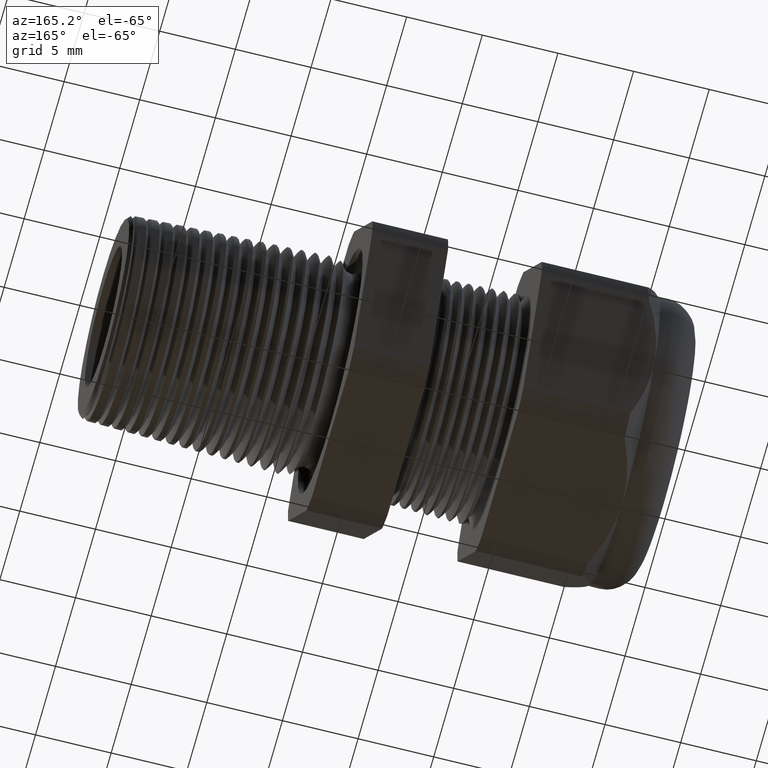
[diagram: clean part render]
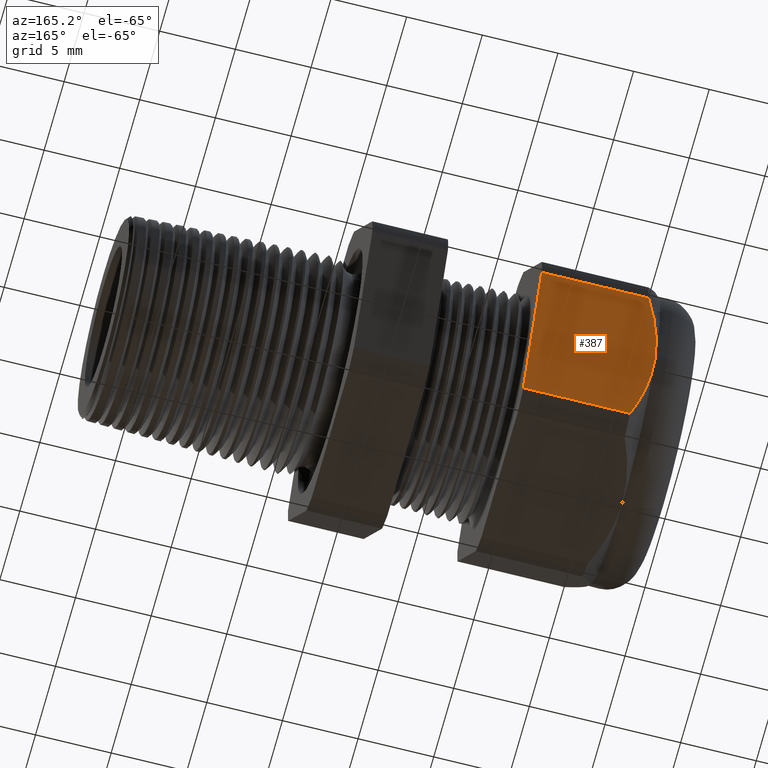
[diagram: same view with one face highlighted and labeled with its STEP entity id]
A machine part, auxiliary view. The second image highlights one B-rep face of the part: STEP entity #387.
In plain terms, the highlighted planar face has unit normal (0, 0.866, -0.5).
Its self-contained STEP definition (entity closure, byte-faithful):
#317 = VERTEX_POINT ( 'NONE', #2302 ) ;
#318 = ORIENTED_EDGE ( 'NONE', *, *, #371, .F. ) ;
#371 = EDGE_CURVE ( 'NONE', #372, #317, #2436, .T. ) ;
#372 = VERTEX_POINT ( 'NONE', #2432 ) ;
#373 = ORIENTED_EDGE ( 'NONE', *, *, #374, .F. ) ;
#374 = EDGE_CURVE ( 'NONE', #391, #372, #2430, .T. ) ;
#387 = ADVANCED_FACE ( 'NONE', ( #2467 ), #2466, .T. ) ;
#388 = EDGE_LOOP ( 'NONE', ( #389, #393, #395, #318, #373 ) ) ;
#389 = ORIENTED_EDGE ( 'NONE', *, *, #390, .T. ) ;
#390 = EDGE_CURVE ( 'NONE', #391, #392, #2461, .T. ) ;
#391 = VERTEX_POINT ( 'NONE', #2457 ) ;
#392 = VERTEX_POINT ( 'NONE', #2456 ) ;
#393 = ORIENTED_EDGE ( 'NONE', *, *, #394, .T. ) ;
#394 = EDGE_CURVE ( 'NONE', #392, #5353, #2516, .T. ) ;
#395 = ORIENTED_EDGE ( 'NONE', *, *, #396, .T. ) ;
#396 = EDGE_CURVE ( 'NONE', #5353, #317, #2515, .T. ) ;
#2302 = CARTESIAN_POINT ( 'NONE',  ( -1.028513779527559000, 0.4150909474475088000, -0.03104138925901209900 ) ) ;
#2427 = DIRECTION ( 'NONE',  ( 0.0000000000000000000, 0.4999999999999998900, 0.8660254037844386000 ) ) ;
#2428 = VECTOR ( 'NONE', #2427, 39.37007874015748900 ) ;
#2429 = CARTESIAN_POINT ( 'NONE',  ( -0.7508661417322833900, 0.3997595264191645700, -0.05759618943233424400 ) ) ;
#2430 = LINE ( 'NONE', #2429, #2428 ) ;
#2432 = CARTESIAN_POINT ( 'NONE',  ( -0.7508661417322833900, 0.4150909474475088000, -0.03104138925901209900 ) ) ;
#2433 = DIRECTION ( 'NONE',  ( -1.000000000000000000, 0.0000000000000000000, 0.0000000000000000000 ) ) ;
#2434 = VECTOR ( 'NONE', #2433, 39.37007874015748100 ) ;
#2435 = CARTESIAN_POINT ( 'NONE',  ( 0.2800000000000000300, 0.4150909474475088000, -0.03104138925901209900 ) ) ;
#2436 = LINE ( 'NONE', #2435, #2434 ) ;
#2456 = CARTESIAN_POINT ( 'NONE',  ( -1.028513779527559000, 0.2344281053908202900, -0.3439586107409879900 ) ) ;
#2457 = CARTESIAN_POINT ( 'NONE',  ( -0.7508661417322833900, 0.2344281053908202900, -0.3439586107409879900 ) ) ;
#2458 = DIRECTION ( 'NONE',  ( -1.000000000000000000, 0.0000000000000000000, 0.0000000000000000000 ) ) ;
#2459 = VECTOR ( 'NONE', #2458, 39.37007874015748100 ) ;
#2460 = CARTESIAN_POINT ( 'NONE',  ( 0.2800000000000000300, 0.2344281053908202900, -0.3439586107409879900 ) ) ;
#2461 = LINE ( 'NONE', #2460, #2459 ) ;
#2462 = DIRECTION ( 'NONE',  ( 0.0000000000000000000, 0.4999999999999998900, 0.8660254037844386000 ) ) ;
#2463 = DIRECTION ( 'NONE',  ( 0.0000000000000000000, 0.8660254037844387100, -0.4999999999999999400 ) ) ;
#2464 = CARTESIAN_POINT ( 'NONE',  ( 0.2800000000000000300, 0.4150909474475088000, -0.03104138925901209900 ) ) ;
#2465 = AXIS2_PLACEMENT_3D ( 'NONE', #2464, #2463, #2462 ) ;
#2466 = PLANE ( 'NONE',  #2465 ) ;
#2467 = FACE_OUTER_BOUND ( 'NONE', #388, .T. ) ;
#2500 = CARTESIAN_POINT ( 'NONE',  ( -1.028513779527559000, 0.4150909474475088000, -0.03104138925901209900 ) ) ;
#2501 = CARTESIAN_POINT ( 'NONE',  ( -1.041003202145915700, 0.4007030353962316400, -0.05596198394665670400 ) ) ;
#2502 = CARTESIAN_POINT ( 'NONE',  ( -1.051459219999149700, 0.3858321107701056500, -0.08171918095463412400 ) ) ;
#2503 = CARTESIAN_POINT ( 'NONE',  ( -1.065817769005222600, 0.3557072427410923900, -0.1338969829521925200 ) ) ;
#2504 = CARTESIAN_POINT ( 'NONE',  ( -1.069763779527558500, 0.3403893008356695900, -0.1604284365997728800 ) ) ;
#2505 = CARTESIAN_POINT ( 'NONE',  ( -1.069763779527559000, 0.3247595264191646100, -0.1875000000000000600 ) ) ;
#2506 = CARTESIAN_POINT ( 'NONE',  ( -1.069763779527559000, 0.3247595264191646100, -0.1875000000000000600 ) ) ;
#2507 = CARTESIAN_POINT ( 'NONE',  ( -1.069763779527559000, 0.3169392765875834700, -0.2010450700361803800 ) ) ;
#2508 = CARTESIAN_POINT ( 'NONE',  ( -1.068759730589041100, 0.3090355397383388000, -0.2147347438287265900 ) ) ;
#2509 = CARTESIAN_POINT ( 'NONE',  ( -1.064926254644834100, 0.2935887246993245700, -0.2414894122914182400 ) ) ;
#2510 = CARTESIAN_POINT ( 'NONE',  ( -1.062104445229485000, 0.2859780998530065400, -0.2546714012025872400 ) ) ;
#2511 = CARTESIAN_POINT ( 'NONE',  ( -1.051298346633053900, 0.2634379006963006300, -0.2937121713547227700 ) ) ;
#2512 = CARTESIAN_POINT ( 'NONE',  ( -1.040987746498826200, 0.2487982124163724800, -0.3190688552625289300 ) ) ;
#2513 = CARTESIAN_POINT ( 'NONE',  ( -1.028513779527559000, 0.2344281053908202900, -0.3439586107409879900 ) ) ;
#2515 = B_SPLINE_CURVE_WITH_KNOTS ( 'NONE', 3,
 ( #2505, #2504, #2503, #2502, #2501, #2500 ),
 .UNSPECIFIED., .F., .F.,
 ( 4, 2, 4 ),
 ( 0.004709976344604662800, 0.007063225540252134100, 0.009416474735899606200 ),
 .UNSPECIFIED. ) ;
#2516 = B_SPLINE_CURVE_WITH_KNOTS ( 'NONE', 3,
 ( #2513, #2512, #2511, #2510, #2509, #2508, #2507, #2506 ),
 .UNSPECIFIED., .F., .F.,
 ( 4, 2, 2, 4 ),
 ( 2.483253706007067000E-007, 0.002355112334987631700, 0.003532544339796147300, 0.004709976344604662800 ),
 .UNSPECIFIED. ) ;
#4916 = CARTESIAN_POINT ( 'NONE',  ( -1.069763779527559000, 0.3247595264191646100, -0.1875000000000000600 ) ) ;
#5353 = VERTEX_POINT ( 'NONE', #4916 ) ;